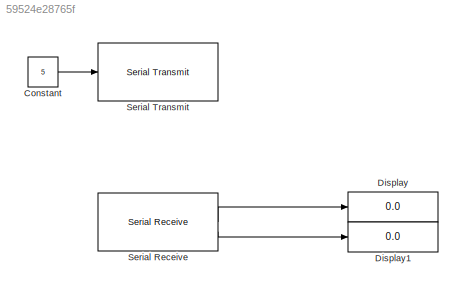
MODEL slx_59524e28765f
KIND model
CONFIG AbsTol = auto
CONFIG EnableMultiTasking = on
CONFIG FixedStep = 1e-3
CONFIG MaxStep = auto
CONFIG MinStep = auto
CONFIG RelTol = 1e-3
CONFIG SampleTimeConstraint = Unconstrained
CONFIG SolverName = FixedStepDiscrete
CONFIG StartTime = 0.0
CONFIG StopTime = 10.0
BLOCK [Constant] Constant
  Value = 5
BLOCK [Display] Display
  Decimation = 1
BLOCK [Display] Display1
  Decimation = 1
BLOCK [Reference] Serial Receive  REF=arduinolib/Serial Receive
  SourceBlock = arduinolib/Serial Receive
  SourceType = Arduino Serial Receive
BLOCK [Reference] Serial Transmit  REF=arduinolib/Serial Transmit
  SourceBlock = arduinolib/Serial Transmit
  SourceType = Arduino Serial Transmit
LINE Constant:1 -> Serial Transmit:1
LINE Serial Receive:1 -> Display:1
LINE Serial Receive:2 -> Display1:1
